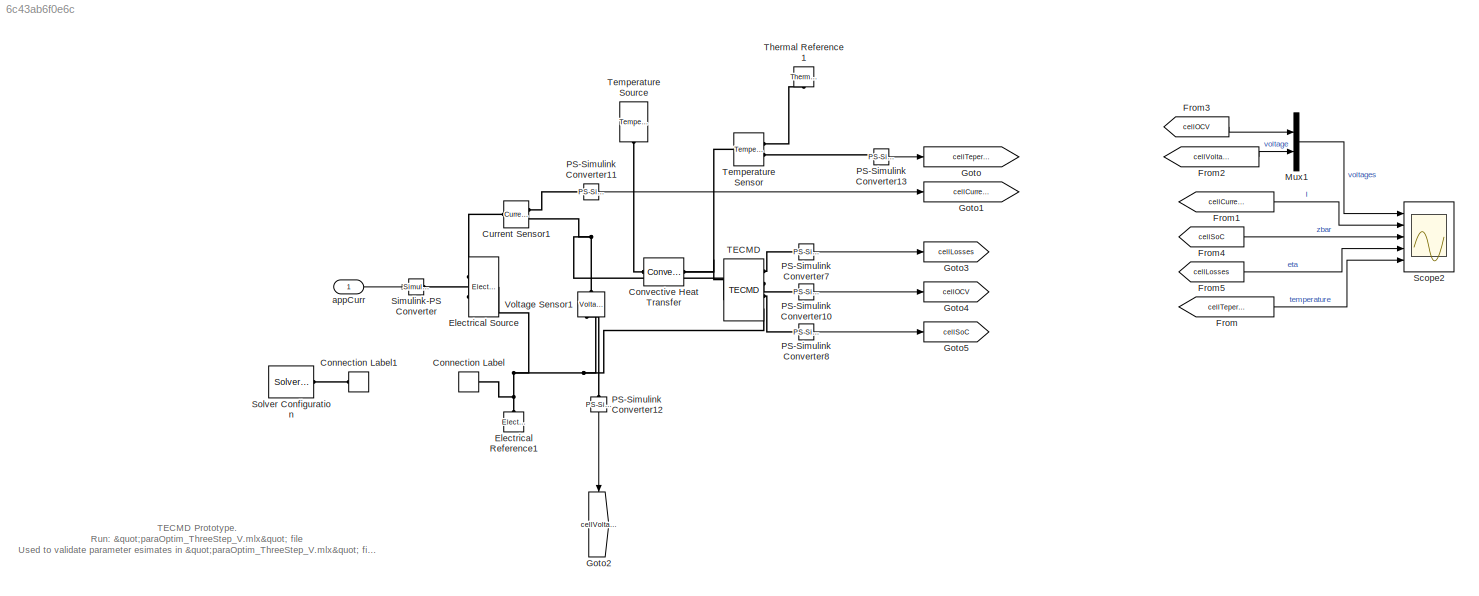
MODEL slx_6c43ab6f0e6c
KIND model
CONFIG AbsTol = 1e-3
CONFIG EnableMultiTasking = off
CONFIG FixedStep = auto
CONFIG MaxStep = auto
CONFIG MinStep = auto
CONFIG RelTol = 1e-3
CONFIG SampleTimeConstraint = Unconstrained
CONFIG SolverName = ode15s
CONFIG StartTime = 0.0
CONFIG StopTime = inf
BLOCK [ConnectionLabel] Connection Label
  Label = solver
  NameLocation = top
  Ports = [0, 0, 0, 0, 0, 1]
BLOCK [ConnectionLabel] Connection Label1
  Label = solver
  Ports = [0, 0, 0, 0, 0, 1]
BLOCK [Reference] Convective Heat Transfer  REF=fl_lib/Thermal/Thermal Elements/Convective Heat
Transfer
  NameLocation = top
  Ports = [0, 0, 0, 0, 0, 1, 1]
  SourceBlock = fl_lib/Thermal/Thermal Elements/Convective Heat\nTransfer
  SourceProductBaseCode = SS
  SourceType = Convective Heat\nTransfer
BLOCK [Reference] Current Sensor1  REF=fl_lib/Electrical/Electrical Sensors/Current Sensor
  NameLocation = top
  Ports = [0, 0, 0, 0, 0, 1, 2]
  SourceBlock = fl_lib/Electrical/Electrical Sensors/Current Sensor
  SourceProductBaseCode = SS
  SourceType = Current Sensor
BLOCK [Reference] Electrical Reference1  REF=fl_lib/Electrical/Electrical Elements/Electrical Reference
  NameLocation = right
  Ports = [0, 0, 0, 0, 0, 1]
  SourceBlock = fl_lib/Electrical/Electrical Elements/Electrical Reference
  SourceProductBaseCode = SS
  SourceType = Electrical Reference
BLOCK [Reference] Electrical Source  REF=BatteryLibrary_lib/Utilities/Electrical Source
  Ports = [0, 0, 0, 0, 0, 2, 1]
  SourceBlock = BatteryLibrary_lib/Utilities/Electrical Source
  SourceType = Electrical Source
BLOCK [From] From
  GotoTag = cellTeperature
BLOCK [From] From1
  GotoTag = cellCurrent
BLOCK [From] From2
  GotoTag = cellVoltage
BLOCK [From] From3
  GotoTag = cellOCV
BLOCK [From] From4
  GotoTag = cellSoC
BLOCK [From] From5
  GotoTag = cellLosses
BLOCK [Goto] Goto
  GotoTag = cellTeperature
BLOCK [Goto] Goto1
  GotoTag = cellCurrent
BLOCK [Goto] Goto2
  GotoTag = cellVoltage
  NameLocation = left
BLOCK [Goto] Goto3
  GotoTag = cellLosses
BLOCK [Goto] Goto4
  GotoTag = cellOCV
BLOCK [Goto] Goto5
  GotoTag = cellSoC
BLOCK [Mux] Mux1
  DisplayOption = bar
  Inputs = 2
  Ports = [2, 1]
BLOCK [Reference] PS-Simulink Converter10  REF=nesl_utility/PS-Simulink
Converter
  NameLocation = right
  Ports = [0, 1, 0, 0, 0, 1]
  SourceBlock = nesl_utility/PS-Simulink\nConverter
  SourceProductName = Utilities
  SourceType = PS-Simulink\nConverter
BLOCK [Reference] PS-Simulink Converter11  REF=nesl_utility/PS-Simulink
Converter
  NameLocation = top
  Ports = [0, 1, 0, 0, 0, 1]
  SourceBlock = nesl_utility/PS-Simulink\nConverter
  SourceProductName = Utilities
  SourceType = PS-Simulink\nConverter
BLOCK [Reference] PS-Simulink Converter12  REF=nesl_utility/PS-Simulink
Converter
  NameLocation = right
  Ports = [0, 1, 0, 0, 0, 1]
  SourceBlock = nesl_utility/PS-Simulink\nConverter
  SourceProductName = Utilities
  SourceType = PS-Simulink\nConverter
BLOCK [Reference] PS-Simulink Converter13  REF=nesl_utility/PS-Simulink
Converter
  NameLocation = top
  Ports = [0, 1, 0, 0, 0, 1]
  SourceBlock = nesl_utility/PS-Simulink\nConverter
  SourceProductName = Utilities
  SourceType = PS-Simulink\nConverter
BLOCK [Reference] PS-Simulink Converter7  REF=nesl_utility/PS-Simulink
Converter
  NameLocation = top
  Ports = [0, 1, 0, 0, 0, 1]
  SourceBlock = nesl_utility/PS-Simulink\nConverter
  SourceProductName = Utilities
  SourceType = PS-Simulink\nConverter
BLOCK [Reference] PS-Simulink Converter8  REF=nesl_utility/PS-Simulink
Converter
  Ports = [0, 1, 0, 0, 0, 1]
  SourceBlock = nesl_utility/PS-Simulink\nConverter
  SourceProductName = Utilities
  SourceType = PS-Simulink\nConverter
BLOCK [Scope] Scope2
  Floating = off
  NumInputPorts = 5
  Ports = [5]
  ScopeSpecificationString = Simulink.scopes.TimeScopeBlockCfg('CurrentConfiguration', extmgr.ConfigurationSet(extmgr.Configuration('Core','General UI',true),extmgr.Configuration('Core','Source UI',true),extmgr.Configuration('Sources','WiredSimulink',true,'DataLoggingVariableName','ScopeData2'),extmgr.Configuration('Visuals','Time Domain',true,'SerializedDisplays',{struct('MinYLimReal','3.10804','MaxYLimReal','5.10804','YLabe...<+6294ch>
BLOCK [Reference] Simulink-PS Converter  REF=nesl_utility/Simulink-PS
Converter
  Ports = [1, 0, 0, 0, 0, 0, 1]
  SourceBlock = nesl_utility/Simulink-PS\nConverter
  SourceProductBaseCode = PW,SS
  SourceType = Simulink-PS\nConverter
BLOCK [Reference] Solver Configuration  REF=nesl_utility/Solver
Configuration
  Ports = [0, 0, 0, 0, 0, 0, 1]
  SourceBlock = nesl_utility/Solver\nConfiguration
  SourceProductName = Utilities
  SourceType = Solver\nConfiguration
BLOCK [Reference] TECMD  REF=BatteryLibrary_lib/Models/TECMD
  Ports = [0, 0, 0, 0, 0, 2, 4]
  SourceBlock = BatteryLibrary_lib/Models/TECMD
  SourceType = TECMD
BLOCK [Reference] Temperature Sensor  REF=fl_lib/Thermal/Thermal Sensors/Temperature Sensor
  Ports = [0, 0, 0, 0, 0, 1, 2]
  SourceBlock = fl_lib/Thermal/Thermal Sensors/Temperature Sensor
  SourceProductBaseCode = SS
  SourceType = Temperature Sensor
BLOCK [Reference] Temperature Source  REF=fl_lib/Thermal/Thermal Sources/Temperature Source
  NameLocation = left
  Ports = [0, 0, 0, 0, 0, 1]
  SourceBlock = fl_lib/Thermal/Thermal Sources/Temperature Source
  SourceProductBaseCode = SS
  SourceType = Temperature Source
BLOCK [Reference] Thermal Reference1  REF=fl_lib/Thermal/Thermal Elements/Thermal Reference
  NameLocation = left
  Ports = [0, 0, 0, 0, 0, 1]
  SourceBlock = fl_lib/Thermal/Thermal Elements/Thermal Reference
  SourceProductBaseCode = SS
  SourceType = Thermal Reference
BLOCK [Reference] Voltage Sensor1  REF=fl_lib/Electrical/Electrical Sensors/Voltage Sensor
  NameLocation = right
  Ports = [0, 0, 0, 0, 0, 1, 2]
  SourceBlock = fl_lib/Electrical/Electrical Sensors/Voltage Sensor
  SourceProductBaseCode = SS
  SourceType = Voltage Sensor
BLOCK [Inport] appCurr
ANNOTATION (root): TECMD Prototype. Run: "paraOptim_ThreeStep_V.mlx" file Used to validate parameter esimates in "paraOptim_ThreeStep_V.mlx" file
LINE From1:1 -> Scope2:2
LINE From2:1 -> Mux1:2
LINE From3:1 -> Mux1:1
LINE From4:1 -> Scope2:3
LINE From5:1 -> Scope2:4
LINE From:1 -> Scope2:5
LINE Mux1:1 -> Scope2:1
LINE PS-Simulink Converter10:1 -> Goto4:1
LINE PS-Simulink Converter11:1 -> Goto1:1
LINE PS-Simulink Converter12:1 -> Goto2:1
LINE PS-Simulink Converter13:1 -> Goto:1
LINE PS-Simulink Converter7:1 -> Goto3:1
LINE PS-Simulink Converter8:1 -> Goto5:1
LINE appCurr:1 -> Simulink-PS Converter:1
PLINE Connection Label1:LConn1 -- Solver Configuration:RConn1
PNET net1: Connection Label:LConn1 -- Electrical Reference1:LConn1 -- Electrical Source:RConn1 -- TECMD:RConn4 -- Voltage Sensor1:RConn2
PNET net2: Convective Heat Transfer:LConn1 -- TECMD:LConn1 -- Temperature Sensor:LConn1
PLINE Convective Heat Transfer:RConn1 -- Temperature Source:LConn1
PLINE Current Sensor1:LConn1 -- Electrical Source:LConn2
PLINE Current Sensor1:RConn1 -- PS-Simulink Converter11:LConn1
PNET net3: Current Sensor1:RConn2 -- TECMD:LConn2 -- Voltage Sensor1:LConn1
PLINE Electrical Source:LConn1 -- Simulink-PS Converter:RConn1
PLINE PS-Simulink Converter10:LConn1 -- TECMD:RConn2
PLINE PS-Simulink Converter12:LConn1 -- Voltage Sensor1:RConn1
PLINE PS-Simulink Converter13:LConn1 -- Temperature Sensor:RConn2
PLINE PS-Simulink Converter7:LConn1 -- TECMD:RConn1
PLINE PS-Simulink Converter8:LConn1 -- TECMD:RConn3
PLINE Temperature Sensor:RConn1 -- Thermal Reference1:LConn1
note: PNET lines group multi-terminal physical nets as a canonical sorted terminal list (undirected conserving connections); 2-terminal nets keep the pairwise PLINE form
